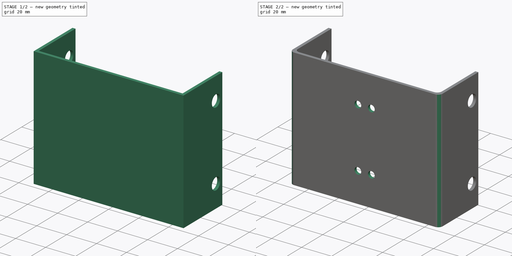
[diagram: build sequence overview — one tinted view per stage of 2, left to right]
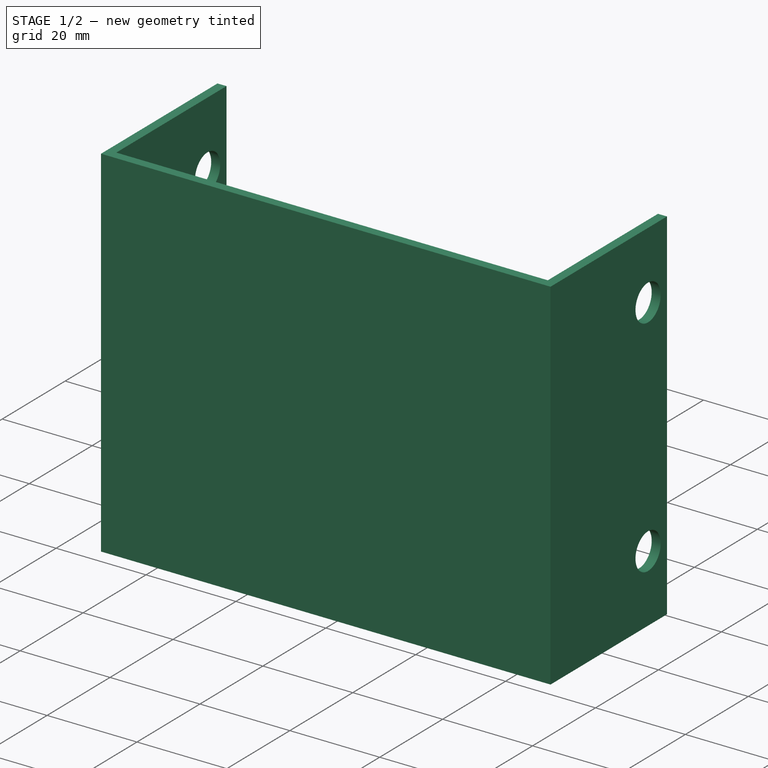
[diagram: stage 1 of 2 — iso view after this stage's code; geometry added in this stage tinted green]
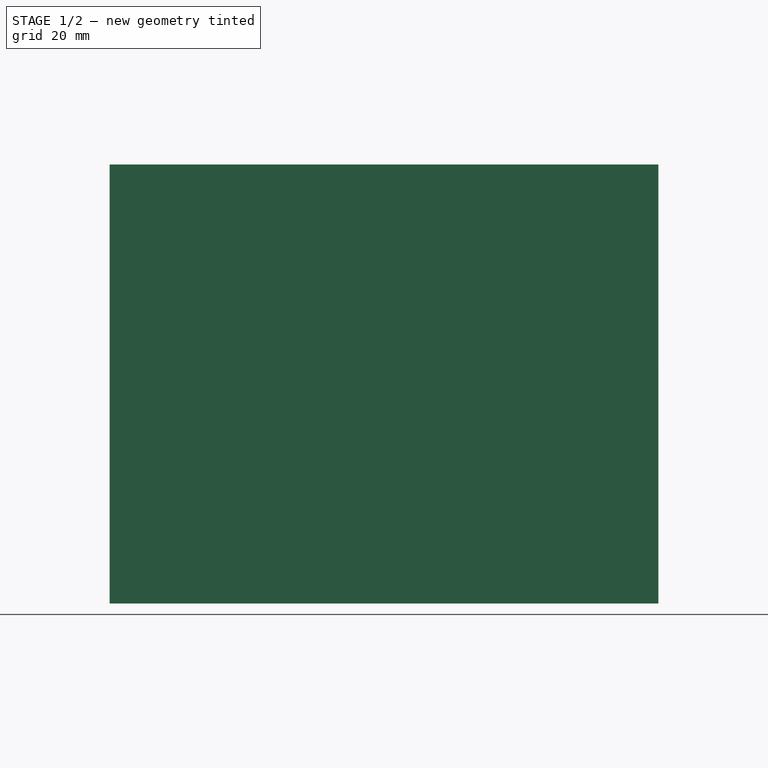
[diagram: stage 1 of 2 — front view after this stage's code; geometry added in this stage tinted green]
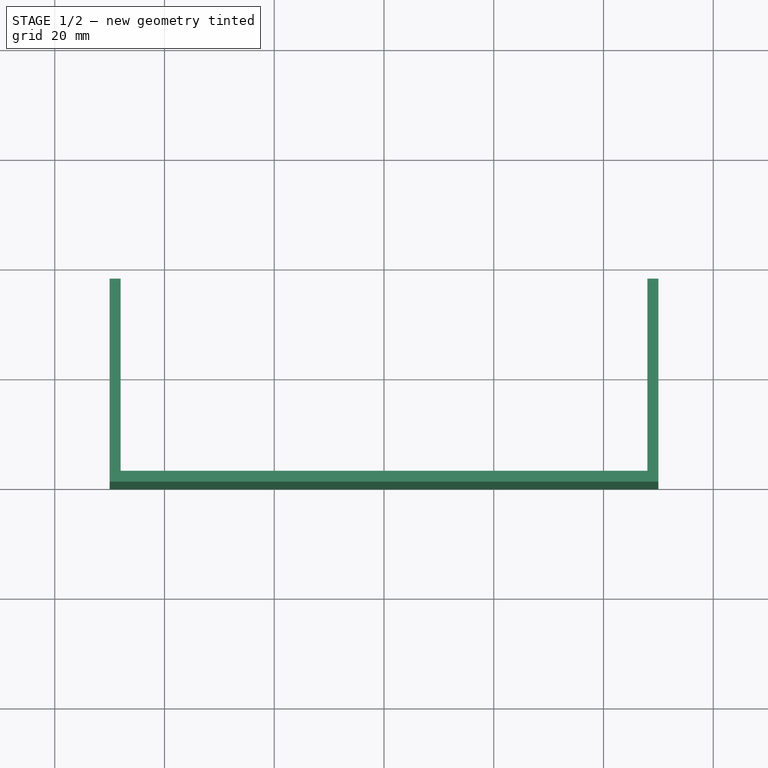
[diagram: stage 1 of 2 — top view after this stage's code; geometry added in this stage tinted green]
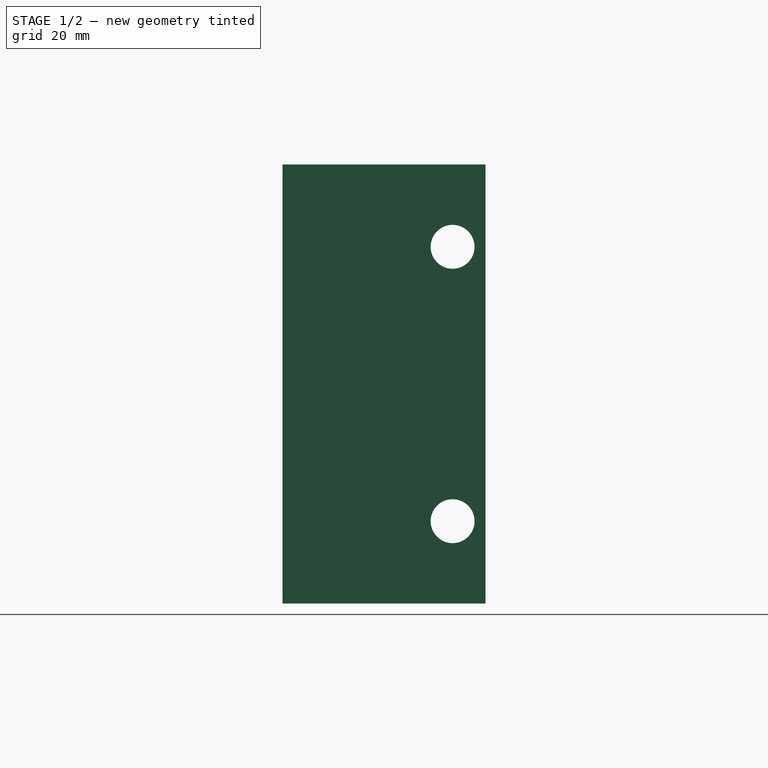
[diagram: stage 1 of 2 — right view after this stage's code; geometry added in this stage tinted green]
FCSTD DOCUMENT  (FreeCAD 0.19R24267 +99 (Git))
Label: Linear scale mounting bracket
License: All rights reserved
LicenseURL: http://en.wikipedia.org/wiki/All_rights_reserved
objects: Sketcher::SketchObject×3, PartDesign::Pocket×2, PartDesign::Pad×1, PartDesign::Fillet×1, PartDesign::Body×1
note: 12 computed .brp shape members not serialized (recipe doc carries the construction recipe); baked Part::Feature solids carry a one-line shape summary decoded from their .brp

FEATURE [Sketcher::SketchObject] Sketch  label="Cross section sketch"
  FullyConstrained = true
  MapMode = 5
  Support = -> [XY_Plane]
  sketch-geometry (9):
    g0: LineSegment StartX=-50 StartY=0 StartZ=0 EndX=50 EndY=0 EndZ=0
    g1: LineSegment StartX=-50 StartY=0 StartZ=0 EndX=-50 EndY=37 EndZ=0
    g2: LineSegment StartX=-50 StartY=37 StartZ=0 EndX=-48 EndY=37 EndZ=0
    g3: LineSegment StartX=-48 StartY=37 StartZ=0 EndX=-48 EndY=2 EndZ=0
    g4: LineSegment StartX=-48 StartY=2 StartZ=0 EndX=48 EndY=2 EndZ=0
    g5: LineSegment StartX=48 StartY=2 StartZ=0 EndX=48 EndY=37 EndZ=0
    g6: LineSegment StartX=48 StartY=37 StartZ=0 EndX=50 EndY=37 EndZ=0
    g7: LineSegment StartX=50 StartY=37 StartZ=0 EndX=50 EndY=0 EndZ=0
    g8: LineSegment StartX=0 StartY=0 StartZ=0 EndX=0 EndY=2 EndZ=0
  constraints (26):
    c: PointOnObject(g0,g-1)
    c: Coincident(g1,g0)
    c: Vertical(g1)
    c: Coincident(g2,g1)
    c: Horizontal(g2)
    c: Coincident(g3,g2)
    c: Vertical(g3)
    c: Coincident(g4,g3)
    c: Horizontal(g4)
    c: Coincident(g5,g4)
    c: Vertical(g5)
    c: Coincident(g6,g5)
    c: Horizontal(g6)
    c: Coincident(g7,g6)
    c: Coincident(g7,g0)
    c: Vertical(g7)
    c: Equal(g2,g6)
    c: Symmetric(g0,g0,g-2)
    c: Coincident(g8,g-1)
    c: PointOnObject(g8,g4)
    c: Vertical(g8)
    c: Equal(g8,g2)
    c: DistanceY(g-1,g8) = 2
    c: DistanceX(g0,g0) = 100
    c: DistanceY(g0,g1) = 37
    c: Equal(g1,g7)
FEATURE [PartDesign::Pad] Pad  label="Bracket length"
  Direction = (1,1,1)
  Length = 80
  Length2 = 100
  Midplane = true
  Profile = -> Sketch
  Type = 0
FEATURE [Sketcher::SketchObject] Sketch001  label="Side mounting holes sketch"
  FullyConstrained = true
  MapMode = 5
  Placement = pos=(0,0,0) rot=(0.57735,0.57735,0.57735;2.0944rad)
  Support = -> [YZ_Plane]
  sketch-geometry (3):
    g0: Circle CenterX=31 CenterY=25 CenterZ=0 NormalX=0 NormalY=0 NormalZ=1 AngleXU=0 Radius=4
    g1: Circle CenterX=31 CenterY=-25 CenterZ=0 NormalX=0 NormalY=0 NormalZ=1 AngleXU=0 Radius=4
    g2: LineSegment StartX=31 StartY=25 StartZ=0 EndX=31 EndY=-25 EndZ=0
  constraints (7):
    c: Coincident(g2,g0)
    c: Coincident(g2,g1)
    c: Symmetric(g1,g0,g-1)
    c: DistanceY(g2,g2) = 50
    c: DistanceX(g-1,g0) = 31
    c: Equal(g0,g1)
    c: Diameter(g0) = 8
FEATURE [PartDesign::Pocket] Pocket  label="Side mounting holes"
  BaseFeature = -> Pad
  Length = 5
  Length2 = 100
  Midplane = true
  Profile = -> Sketch001
  Type = 1
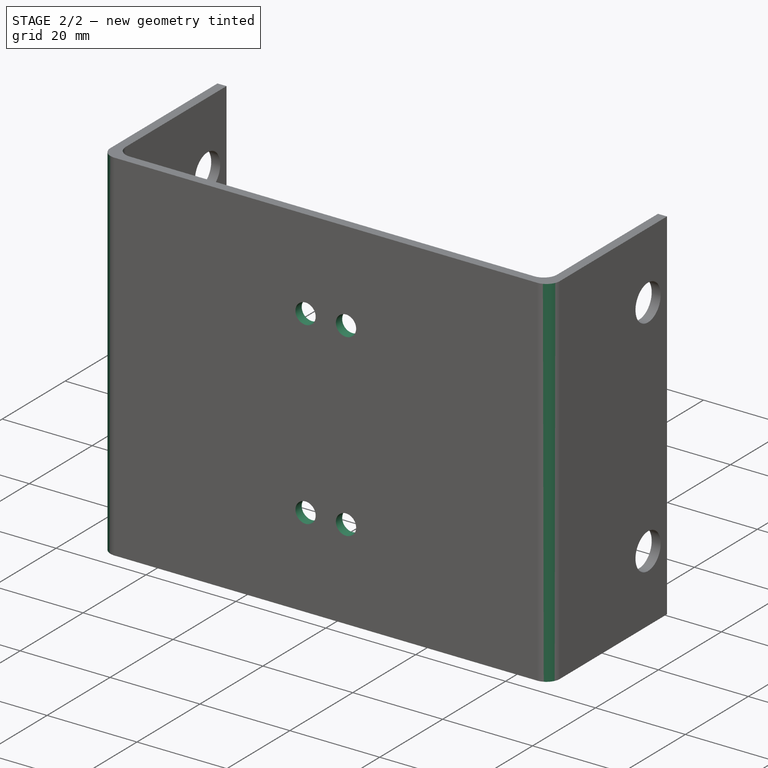
[diagram: stage 2 of 2 — iso view after this stage's code; geometry added in this stage tinted green]
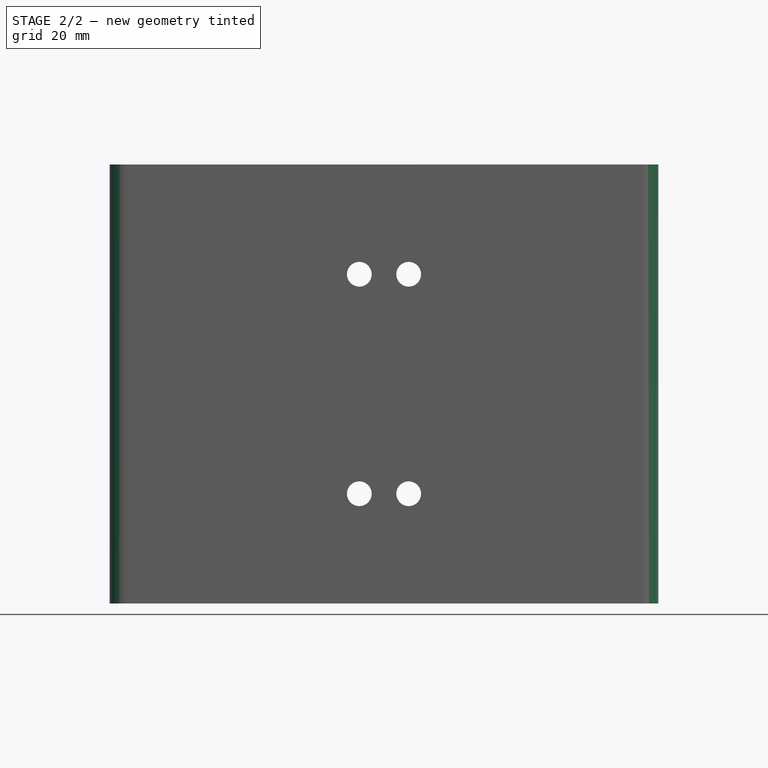
[diagram: stage 2 of 2 — front view after this stage's code; geometry added in this stage tinted green]
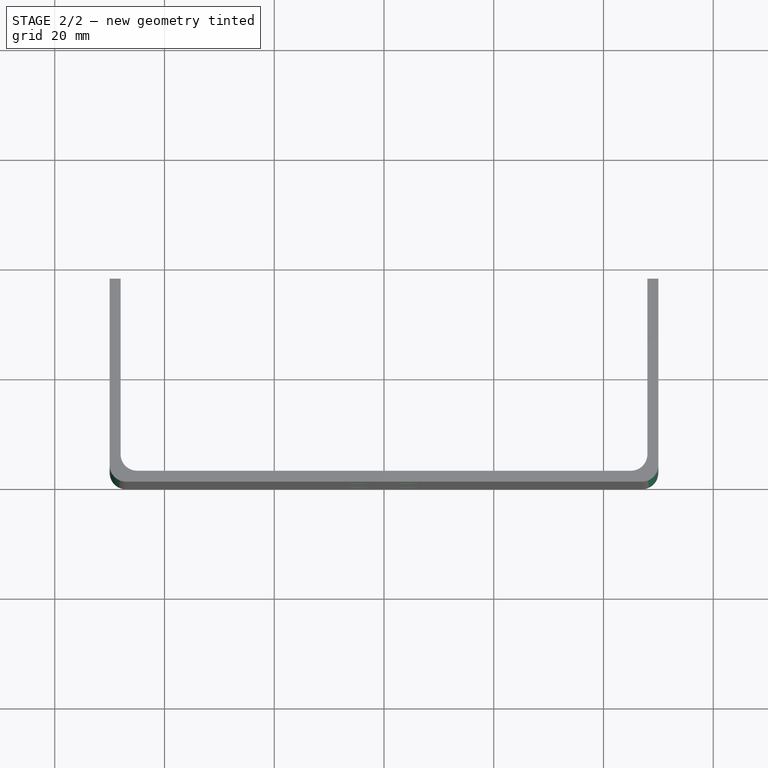
[diagram: stage 2 of 2 — top view after this stage's code; geometry added in this stage tinted green]
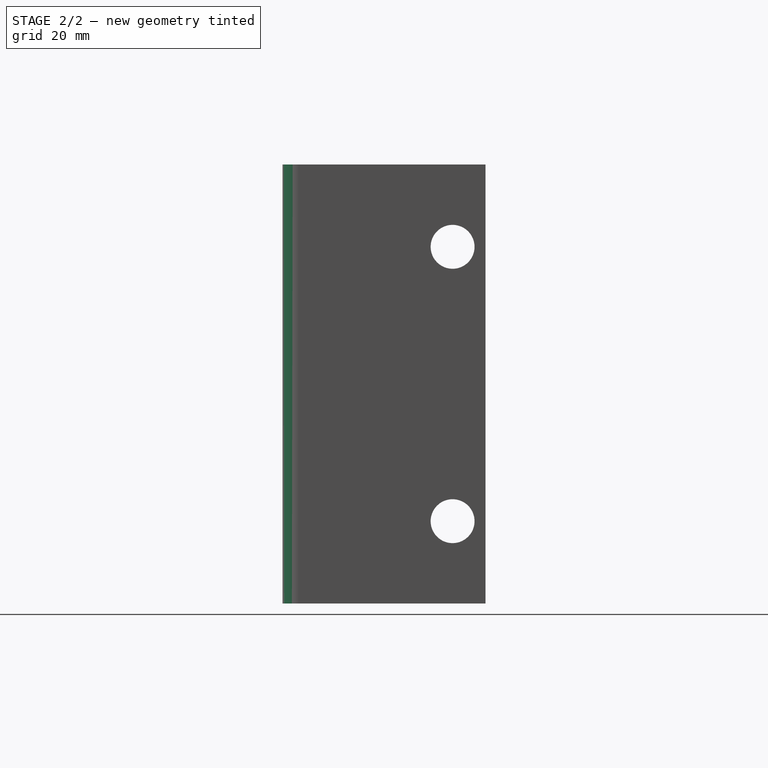
[diagram: stage 2 of 2 — right view after this stage's code; geometry added in this stage tinted green]
FEATURE [Sketcher::SketchObject] Sketch002  label="Linear scale mounting holes sketch"
  FullyConstrained = true
  MapMode = 5
  Placement = pos=(0,0,0) rot=(1,0,0;1.5708rad)
  Support = -> [XZ_Plane]
  sketch-geometry (8):
    g0: Circle CenterX=-4.5 CenterY=20 CenterZ=0 NormalX=0 NormalY=0 NormalZ=1 AngleXU=0 Radius=2.25
    g1: Circle CenterX=4.5 CenterY=20 CenterZ=0 NormalX=0 NormalY=0 NormalZ=1 AngleXU=0 Radius=2.25
    g2: Circle CenterX=-4.5 CenterY=-20 CenterZ=0 NormalX=0 NormalY=0 NormalZ=1 AngleXU=0 Radius=2.25
    g3: Circle CenterX=4.5 CenterY=-20 CenterZ=0 NormalX=0 NormalY=0 NormalZ=1 AngleXU=0 Radius=2.25
    g4: LineSegment StartX=-4.5 StartY=20 StartZ=0 EndX=4.5 EndY=20 EndZ=0
    g5: LineSegment StartX=4.5 StartY=20 StartZ=0 EndX=4.5 EndY=-20 EndZ=0
    g6: LineSegment StartX=4.5 StartY=-20 StartZ=0 EndX=-4.5 EndY=-20 EndZ=0
    g7: LineSegment StartX=-4.5 StartY=-20 StartZ=0 EndX=-4.5 EndY=20 EndZ=0
  constraints (18):
    c: Equal(g3,g2)
    c: Equal(g2,g0)
    c: Equal(g0,g1)
    c: Diameter(g0) = 4.5
    c: Coincident(g4,g0)
    c: Coincident(g4,g1)
    c: Coincident(g5,g1)
    c: Coincident(g5,g3)
    c: Coincident(g6,g3)
    c: Coincident(g6,g2)
    c: Horizontal(g6)
    c: Coincident(g7,g2)
    c: Coincident(g7,g0)
    c: Vertical(g7)
    c: Symmetric(g0,g1,g-2)
    c: Symmetric(g1,g3,g-1)
    c: DistanceX(g4,g4) = 9
    c: DistanceY(g5,g5) = 40
FEATURE [PartDesign::Pocket] Pocket001  label="Linear scale mounting holes"
  BaseFeature = -> Pocket
  Length = 5
  Length2 = 100
  Midplane = true
  Profile = -> Sketch002
  Type = 1
FEATURE [PartDesign::Fillet] Fillet  label="Bend representation"
  Base = -> Pocket001 [Edge43,Edge46,Edge4,Edge1]
  BaseFeature = -> Pocket001
  Radius = 3
  SupportTransform = false
FEATURE [PartDesign::Body] Body
  Group = -> [Sketch,Pad,Sketch001,Pocket,Sketch002,Pocket001,Fillet]
  Origin = -> Origin
  Tip = -> Fillet
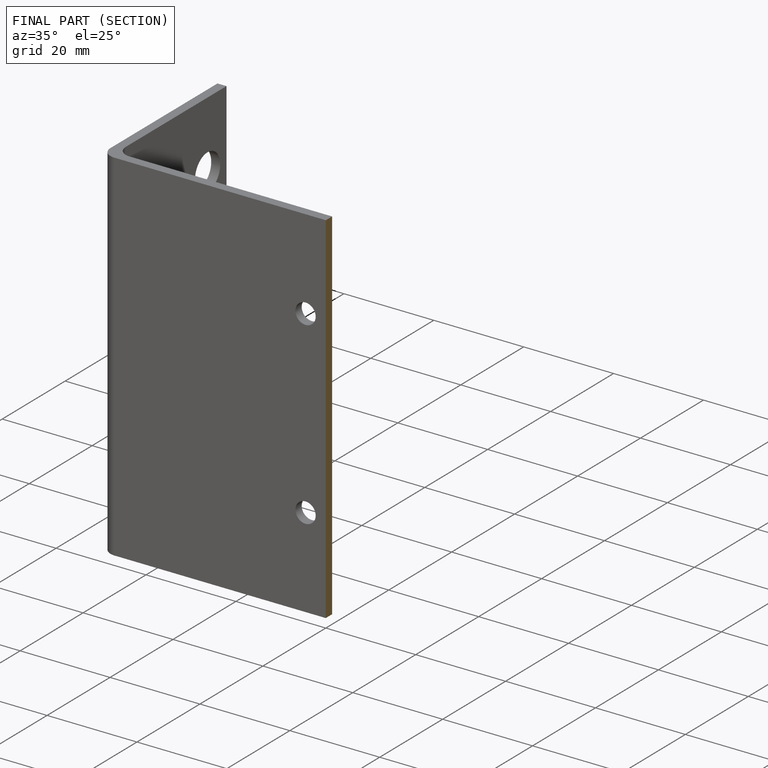
[diagram: finished part — half-section view (interior)]
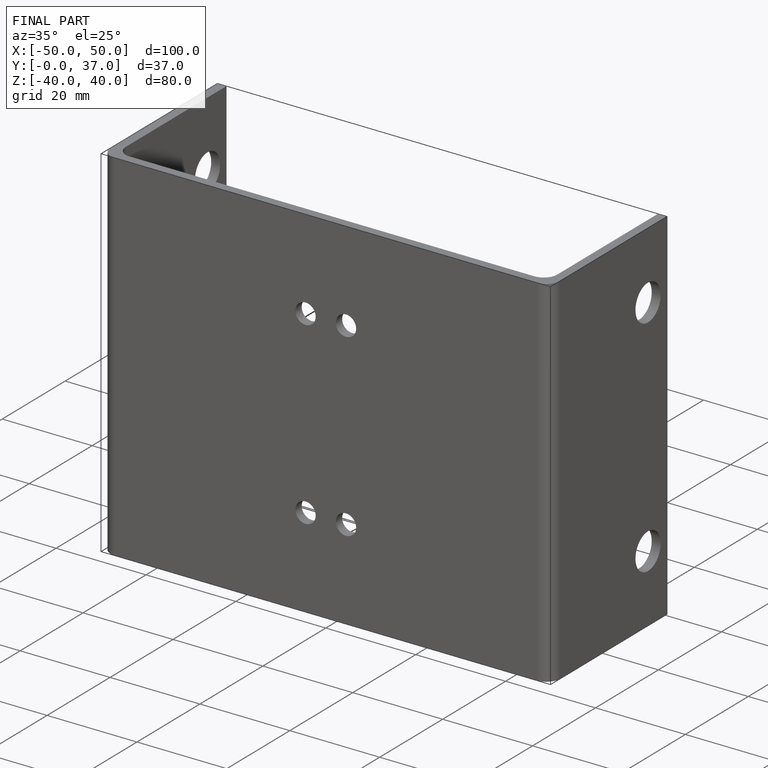
[diagram: finished part — iso view with bounding-box wireframe]
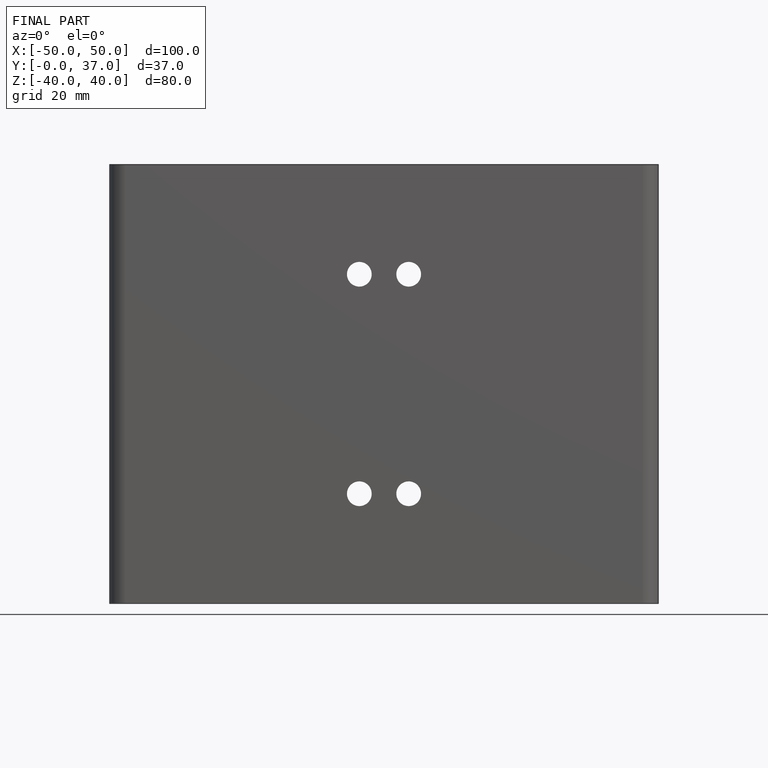
[diagram: finished part — front view with bounding-box wireframe]
